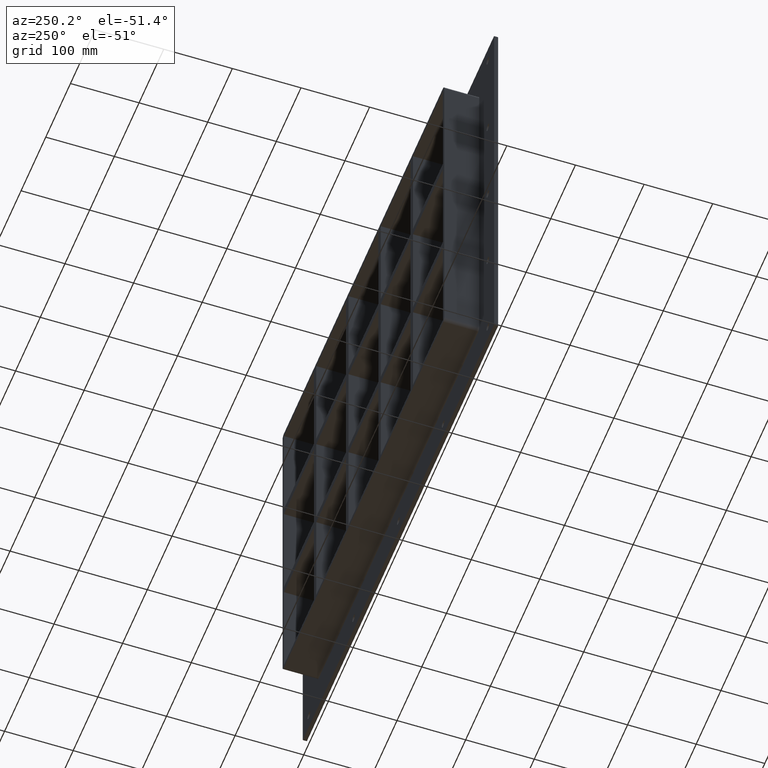
[diagram: clean part render]
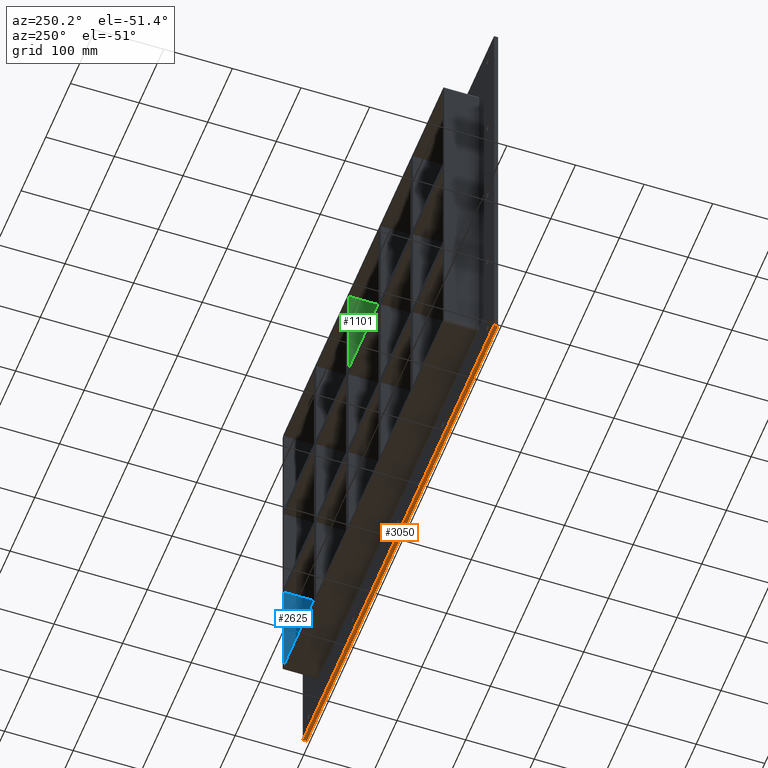
[diagram: same view with three faces highlighted in distinct colors, each labeled with its STEP entity id]
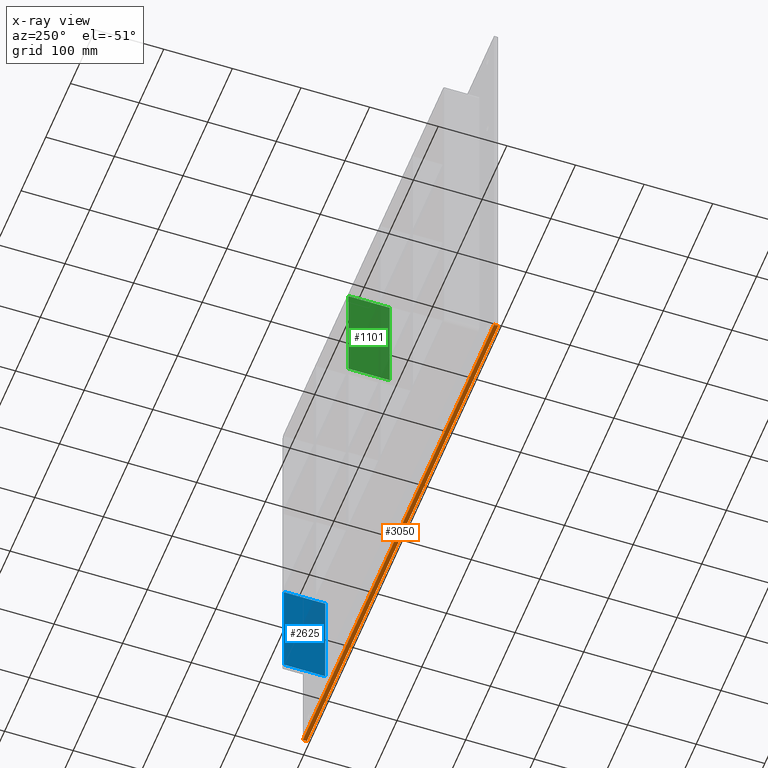
[diagram: x-ray of the same camera — body ghosted, the three highlighted faces saturated]
A machine part, auxiliary view with three faces highlighted in distinct colors.
The next image is the same camera in x-ray (body ghosted, the three faces saturated) — at least one of them is partly hidden behind the body in this view.
Their STEP definitions:

[orange] entity #3050 — the highlighted planar face has unit normal (0, 0, -1).
#2711=CARTESIAN_POINT('',(387.24999999999989,6.000000000000001,-317.24999999999994));
#2712=VERTEX_POINT('',#2711);
#2719=CARTESIAN_POINT('',(-387.25,6.000000000000001,-317.24999999999994));
#2720=VERTEX_POINT('',#2719);
#2721=CARTESIAN_POINT('',(387.24999999999989,6.000000000000001,-317.25));
#2722=DIRECTION('',(-1.0,0.0,0.0));
#2723=VECTOR('',#2722,774.49999999999989);
#2724=LINE('',#2721,#2723);
#2725=EDGE_CURVE('',#2712,#2720,#2724,.T.);
#2869=CARTESIAN_POINT('',(-387.25,0.0,-317.25));
#2870=VERTEX_POINT('',#2869);
#2877=CARTESIAN_POINT('',(387.24999999999989,0.0,-317.25));
#2878=VERTEX_POINT('',#2877);
#2879=CARTESIAN_POINT('',(387.24999999999989,0.0,-317.25));
#2880=DIRECTION('',(-1.0,0.0,0.0));
#2881=VECTOR('',#2880,774.49999999999989);
#2882=LINE('',#2879,#2881);
#2883=EDGE_CURVE('',#2878,#2870,#2882,.T.);
#3025=CARTESIAN_POINT('',(-387.25,0.0,-317.25));
#3026=DIRECTION('',(0.0,1.0,0.0));
#3027=VECTOR('',#3026,6.000000000000001);
#3028=LINE('',#3025,#3027);
#3029=EDGE_CURVE('',#2870,#2720,#3028,.T.);
#3034=CARTESIAN_POINT('',(387.24999999999989,0.0,-317.25));
#3035=DIRECTION('',(0.0,0.0,-1.0));
#3036=DIRECTION('',(-1.0,0.0,0.0));
#3037=AXIS2_PLACEMENT_3D('',#3034,#3035,#3036);
#3038=PLANE('',#3037);
#3039=ORIENTED_EDGE('',*,*,#2883,.T.);
#3040=ORIENTED_EDGE('',*,*,#3029,.T.);
#3041=ORIENTED_EDGE('',*,*,#2725,.F.);
#3042=CARTESIAN_POINT('',(387.24999999999989,0.0,-317.25));
#3043=DIRECTION('',(0.0,1.0,0.0));
#3044=VECTOR('',#3043,6.000000000000001);
#3045=LINE('',#3042,#3044);
#3046=EDGE_CURVE('',#2878,#2712,#3045,.T.);
#3047=ORIENTED_EDGE('',*,*,#3046,.F.);
#3048=EDGE_LOOP('',(#3039,#3040,#3041,#3047));
#3049=FACE_OUTER_BOUND('',#3048,.T.);
#3050=ADVANCED_FACE('',(#3049),#3038,.T.);

[blue] entity #2625 — the highlighted planar face has unit normal (1, 0, 0).
#1667=CARTESIAN_POINT('',(321.24999999999994,57.0,-251.25000000000003));
#1668=VERTEX_POINT('',#1667);
#1675=CARTESIAN_POINT('',(321.25000000000006,57.0,-91.750000000010175));
#1676=VERTEX_POINT('',#1675);
#1677=CARTESIAN_POINT('',(321.24999999999994,57.0,-251.25));
#1678=DIRECTION('',(0.0,0.0,1.0));
#1679=VECTOR('',#1678,159.49999999998983);
#1680=LINE('',#1677,#1679);
#1681=EDGE_CURVE('',#1668,#1676,#1680,.T.);
#2094=CARTESIAN_POINT('',(321.24999999999994,-3.0,-251.25000000000003));
#2095=VERTEX_POINT('',#2094);
#2102=CARTESIAN_POINT('',(321.24999999999994,56.999999999999993,-251.25000000000003));
#2103=DIRECTION('',(0.0,-1.0,0.0));
#2104=VECTOR('',#2103,59.999999999999993);
#2105=LINE('',#2102,#2104);
#2106=EDGE_CURVE('',#1668,#2095,#2105,.T.);
#2352=CARTESIAN_POINT('',(321.25,-3.0,-91.750000000010175));
#2353=VERTEX_POINT('',#2352);
#2360=CARTESIAN_POINT('',(321.24999999999994,-3.0,-91.750000000010175));
#2361=DIRECTION('',(0.0,0.0,-1.0));
#2362=VECTOR('',#2361,159.49999999998983);
#2363=LINE('',#2360,#2362);
#2364=EDGE_CURVE('',#2353,#2095,#2363,.T.);
#2411=CARTESIAN_POINT('',(321.24999999999994,-3.0,-91.750000000010189));
#2412=DIRECTION('',(0.0,1.0,0.0));
#2413=VECTOR('',#2412,60.000000000000007);
#2414=LINE('',#2411,#2413);
#2415=EDGE_CURVE('',#2353,#1676,#2414,.T.);
#2614=CARTESIAN_POINT('',(321.24999999999994,0.0,251.25));
#2615=DIRECTION('',(1.0,0.0,0.0));
#2616=DIRECTION('',(0.0,0.0,-1.0));
#2617=AXIS2_PLACEMENT_3D('',#2614,#2615,#2616);
#2618=PLANE('',#2617);
#2619=ORIENTED_EDGE('',*,*,#2415,.T.);
#2620=ORIENTED_EDGE('',*,*,#1681,.F.);
#2621=ORIENTED_EDGE('',*,*,#2106,.T.);
#2622=ORIENTED_EDGE('',*,*,#2364,.F.);
#2623=EDGE_LOOP('',(#2619,#2620,#2621,#2622));
#2624=FACE_OUTER_BOUND('',#2623,.T.);
#2625=ADVANCED_FACE('',(#2624),#2618,.F.);

[green] entity #1101 — the highlighted planar face has unit normal (-1, 0, 0).
#841=CARTESIAN_POINT('',(60.249999999997854,57.0,91.750000000000085));
#842=VERTEX_POINT('',#841);
#843=CARTESIAN_POINT('',(60.249999999997854,-3.0,91.750000000000085));
#844=VERTEX_POINT('',#843);
#845=CARTESIAN_POINT('',(60.249999999997819,57.0,91.750000000000085));
#846=DIRECTION('',(0.0,-1.0,0.0));
#847=VECTOR('',#846,60.0);
#848=LINE('',#845,#847);
#849=EDGE_CURVE('',#842,#844,#848,.T.);
#1071=CARTESIAN_POINT('',(60.249999999997854,-3.0,-251.25000000000003));
#1072=DIRECTION('',(-1.0,0.0,0.0));
#1073=DIRECTION('',(0.0,0.0,1.0));
#1074=AXIS2_PLACEMENT_3D('',#1071,#1072,#1073);
#1075=PLANE('',#1074);
#1076=ORIENTED_EDGE('',*,*,#849,.T.);
#1077=CARTESIAN_POINT('',(60.249999999997819,-3.0,251.24999999999997));
#1078=VERTEX_POINT('',#1077);
#1079=CARTESIAN_POINT('',(60.249999999997833,-3.0,91.750000000000085));
#1080=DIRECTION('',(0.0,0.0,1.0));
#1081=VECTOR('',#1080,159.49999999999989);
#1082=LINE('',#1079,#1081);
#1083=EDGE_CURVE('',#844,#1078,#1082,.T.);
#1084=ORIENTED_EDGE('',*,*,#1083,.T.);
#1085=CARTESIAN_POINT('',(60.249999999997819,57.0,251.24999999999997));
#1086=VERTEX_POINT('',#1085);
#1087=CARTESIAN_POINT('',(60.249999999997797,57.000000000000007,251.25));
#1088=DIRECTION('',(0.0,-1.0,0.0));
#1089=VECTOR('',#1088,60.000000000000007);
#1090=LINE('',#1087,#1089);
#1091=EDGE_CURVE('',#1086,#1078,#1090,.T.);
#1092=ORIENTED_EDGE('',*,*,#1091,.F.);
#1093=CARTESIAN_POINT('',(60.249999999997833,57.0,91.750000000000085));
#1094=DIRECTION('',(0.0,0.0,1.0));
#1095=VECTOR('',#1094,159.49999999999989);
#1096=LINE('',#1093,#1095);
#1097=EDGE_CURVE('',#842,#1086,#1096,.T.);
#1098=ORIENTED_EDGE('',*,*,#1097,.F.);
#1099=EDGE_LOOP('',(#1076,#1084,#1092,#1098));
#1100=FACE_OUTER_BOUND('',#1099,.T.);
#1101=ADVANCED_FACE('',(#1100),#1075,.T.);